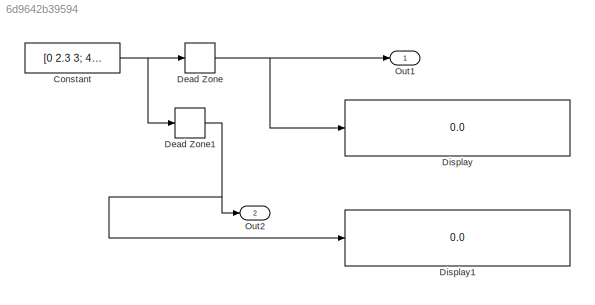
MODEL slx_6d9642b39594
KIND model
CONFIG AbsTol = auto
CONFIG EnableMultiTasking = on
CONFIG FixedStep = 0.200000
CONFIG MaxStep = auto
CONFIG MinStep = auto
CONFIG RelTol = 1e-3
CONFIG SampleTimeConstraint = Unconstrained
CONFIG Solver = ode3
CONFIG SolverName = ode3
CONFIG StartTime = 0.0
CONFIG StopTime = 10.0
BLOCK [Constant] Constant
  Value = [0 2.3 3; 4 5 7]
BLOCK [DeadZone] Dead Zone
  LowerValue = 2
  UpperValue = 5
BLOCK [DeadZone] Dead Zone1
  LowerValue = 2
  UpperValue = 5
BLOCK [Display] Display
  Decimation = 1
  Ports = [1]
BLOCK [Display] Display1
  Decimation = 1
  Ports = [1]
BLOCK [Outport] Out1
  IconDisplay = Port number
BLOCK [Outport] Out2
  IconDisplay = Port number
  Port = 2
NET Constant:1 -> Dead Zone1:1, Dead Zone:1
NET Dead Zone1:1 -> Display1:1, Out2:1
NET Dead Zone:1 -> Display:1, Out1:1
note: NET lines group one-source signal fan-out (src -> all destinations, sorted); 1:1 wires keep LINE
